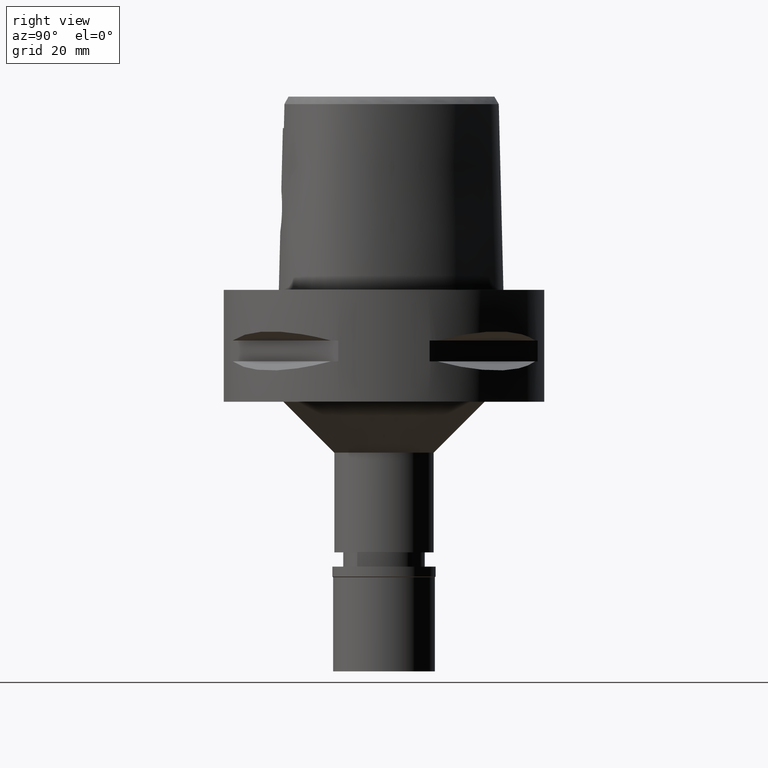
[diagram: clean part render]
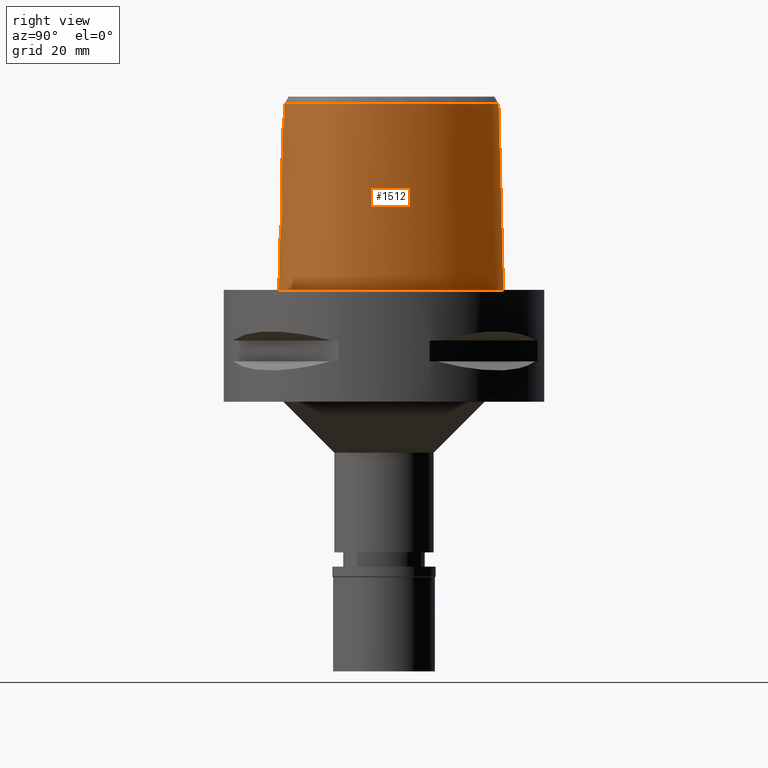
[diagram: same view with one face highlighted and labeled with its STEP entity id]
A machine part, right view. The second image highlights one B-rep face of the part: STEP entity #1512.
In plain terms, the highlighted face is a freeform B-spline surface patch.
Its self-contained STEP definition (entity closure, byte-faithful):
#9 = CARTESIAN_POINT ( 'NONE',  ( 13.93560865100999990, 15.24203790339999998, 24.59140259457000255 ) ) ;
#25 = CARTESIAN_POINT ( 'NONE',  ( 2.755157824485813478, -20.25369729349931447, 12.53110329701945957 ) ) ;
#29 = CARTESIAN_POINT ( 'NONE',  ( 0.5662264553953000323, 22.56729408688000049, 37.25232274225999873 ) ) ;
#36 = CARTESIAN_POINT ( 'NONE',  ( 0.0000000000000000000, -20.18628283968999781, 19.55000000000000071 ) ) ;
#50 = CARTESIAN_POINT ( 'NONE',  ( 4.467522181836776518, -19.48130276147466233, 36.52186680739941949 ) ) ;
#60 = CARTESIAN_POINT ( 'NONE',  ( 7.571159433700400676, 21.31457031138521074, 5.133892459372943473E-08 ) ) ;
#71 = CARTESIAN_POINT ( 'NONE',  ( 1.534443768011648057, -20.34781270669742170, 11.75193064433114998 ) ) ;
#98 = CARTESIAN_POINT ( 'NONE',  ( 3.733615223661733928, -20.12743432469062910, 13.93072684952629103 ) ) ;
#99 = CARTESIAN_POINT ( 'NONE',  ( 4.757642236485272846, 21.67478320247679591, 36.52186680739941949 ) ) ;
#112 = CARTESIAN_POINT ( 'NONE',  ( 2.503154195450497888, -19.81241979350998861, 31.80000012137775656 ) ) ;
#130 = CARTESIAN_POINT ( 'NONE',  ( 0.5990982011772000293, 23.20165468101000172, 11.93048244686999837 ) ) ;
#153 = CARTESIAN_POINT ( 'NONE',  ( 3.756125069740346767, -20.04745855932932130, 17.01462778956118171 ) ) ;
#178 = CARTESIAN_POINT ( 'NONE',  ( 3.139923909412124736, -20.08266069410734289, 18.05905178831253366 ) ) ;
#181 = VERTEX_POINT ( 'NONE', #536 ) ;
#203 = CARTESIAN_POINT ( 'NONE',  ( 2.297767253104399110, -20.12839387099746702, 18.84582622681135788 ) ) ;
#242 = CARTESIAN_POINT ( 'NONE',  ( 6.344715576791000622, -20.31619965019000063, -0.7304377008286999651 ) ) ;
#254 = CARTESIAN_POINT ( 'NONE',  ( 3.637738219117000238, -19.56971420299000286, 36.52185956443999970 ) ) ;
#256 = CARTESIAN_POINT ( 'NONE',  ( 1.557547252386422443, -20.15944608752167611, 19.23852208297625666 ) ) ;
#286 = CARTESIAN_POINT ( 'NONE',  ( 21.76083711900999873, -6.805026044168000610, 11.93048244686999837 ) ) ;
#297 = CARTESIAN_POINT ( 'NONE',  ( -1.332086229924000112E-11, -20.67499999999999716, 1.606492716632999857E-13 ) ) ;
#311 = CARTESIAN_POINT ( 'NONE',  ( 4.868968416980999692, 21.95285536443999774, 24.59140259457000255 ) ) ;
#330 = CARTESIAN_POINT ( 'NONE',  ( 19.40779768701000307, -12.64961927324999991, 11.93048244686999837 ) ) ;
#349 = CARTESIAN_POINT ( 'NONE',  ( 21.57281239314000132, -9.001246195337998302, -0.7304377008286999651 ) ) ;
#370 = CARTESIAN_POINT ( 'NONE',  ( 22.07548129164000272, -6.850245535560999244, -0.7304377008286999651 ) ) ;
#387 = CARTESIAN_POINT ( 'NONE',  ( 3.597776364496946933, -20.14975664637258745, 13.63784956325325304 ) ) ;
#398 = CARTESIAN_POINT ( 'NONE',  ( 20.93173252094357295, -10.60431640572513423, 5.133892459372943473E-08 ) ) ;
#401 = CARTESIAN_POINT ( 'NONE',  ( 6.819050439105700543E-09, -19.98212988583619065, 27.71666688228206610 ) ) ;
#405 = B_SPLINE_CURVE_WITH_KNOTS ( 'NONE', 3,
 ( #913, #112, #3093, #938 ),
 .UNSPECIFIED., .F., .F.,
 ( 4, 4 ),
 ( 0.0000000000000000000, 1.000000000000000000 ),
 .UNSPECIFIED. ) ;
#409 = EDGE_CURVE ( 'NONE', #2981, #2292, #1281, .T. ) ;
#411 = CARTESIAN_POINT ( 'NONE',  ( -1.661174828071999997E-12, -20.38876923348000147, 11.44999999999999929 ) ) ;
#424 = CARTESIAN_POINT ( 'NONE',  ( 22.05732874194318427, -6.847636718566505465, 5.133892459372943473E-08 ) ) ;
#441 = CARTESIAN_POINT ( 'NONE',  ( 21.07429999882542404, -0.4408303635841513968, 36.52186680739941949 ) ) ;
#444 = CARTESIAN_POINT ( 'NONE',  ( -0.4685451964167999805, 23.16976073745999898, 11.93048244686999837 ) ) ;
#458 = EDGE_LOOP ( 'NONE', ( #3742, #1393, #1088, #4203, #2343, #995, #4684, #4397 ) ) ;
#461 = CARTESIAN_POINT ( 'NONE',  ( 3.724651210598531215, -20.12894159338725686, 13.90953409661135609 ) ) ;
#464 = CARTESIAN_POINT ( 'NONE',  ( 10.91891095221553343, -18.03046396093033366, 36.52186680739941949 ) ) ;
#514 = CARTESIAN_POINT ( 'NONE',  ( 2.894554313917170330, -20.09690386000385587, 18.33268078382266708 ) ) ;
#536 = CARTESIAN_POINT ( 'NONE',  ( -1.479182330943000172E-11, 22.56201468012000078, 36.52186680743999858 ) ) ;
#543 = CARTESIAN_POINT ( 'NONE',  ( 0.4959045370077683756, -20.18628283969000847, 19.55000000000000426 ) ) ;
#566 = CARTESIAN_POINT ( 'NONE',  ( 4.049385880667935034, -20.05442340995131545, 15.42296868718058533 ) ) ;
#599 = CARTESIAN_POINT ( 'NONE',  ( -0.4439347110420999720, -19.74161829701999693, 37.25232274225999873 ) ) ;
#613 = CARTESIAN_POINT ( 'NONE',  ( 1.850273374710851959, -20.14815026262960984, 19.10390060252128208 ) ) ;
#623 = CARTESIAN_POINT ( 'NONE',  ( -0.6779734136081999596, -20.37023483331000051, 11.93048244686999837 ) ) ;
#649 = CARTESIAN_POINT ( 'NONE',  ( 4.987110666642000645, 22.24795280366999961, 11.93048244686999837 ) ) ;
#654 = EDGE_CURVE ( 'NONE', #1007, #2981, #405, .T. ) ;
#656 = CARTESIAN_POINT ( 'NONE',  ( 5.098437016805039690, 22.52602538943070343, 5.133892459372943473E-08 ) ) ;
#669 = CARTESIAN_POINT ( 'NONE',  ( 14.42198652042999818, 15.65278600286999833, -0.7304377008286999651 ) ) ;
#693 = CARTESIAN_POINT ( 'NONE',  ( 18.89485276765000066, -12.27684372565000004, 37.25232274225999873 ) ) ;
#713 = CARTESIAN_POINT ( 'NONE',  ( 17.80867307855000092, 10.28184208416000089, 11.93048244686999837 ) ) ;
#729 = CARTESIAN_POINT ( 'NONE',  ( 18.12052901851000186, -13.74516025311999989, 24.59140259457000255 ) ) ;
#747 = CARTESIAN_POINT ( 'NONE',  ( 2.830716186895712916, -20.24585369672335489, 12.60349817410715367 ) ) ;
#756 = CARTESIAN_POINT ( 'NONE',  ( 20.34961798445548453, -11.74885742122440035, 5.133892459372943473E-08 ) ) ;
#762 = EDGE_CURVE ( 'NONE', #3873, #2292, #4192, .T. ) ;
#764 = B_SPLINE_CURVE_WITH_KNOTS ( 'NONE', 3,
 ( #297, #2124, #3260, #4112, #2986, #1123, #3622, #2624, #756, #398, #1149, #424, #2883, #2521, #4012, #782, #3769, #3410, #60, #656, #1778, #4180, #4154 ),
 .UNSPECIFIED., .F., .F.,
 ( 4, 1, 1, 1, 1, 1, 1, 1, 1, 1, 1, 1, 1, 1, 1, 1, 1, 1, 1, 1, 4 ),
 ( 0.0000000000000000000, 0.08333333333346000515, 0.1666666666668000230, 0.2083333333334000115, 0.2500000000000000000, 0.2916666666666999919, 0.3125000000000000000, 0.3333333333333000081, 0.3541666666666999919, 0.3750000000000000000, 0.4166666666666999919, 0.4583333333332000326, 0.4999999999998999689, 0.5833333333332000326, 0.6666666666664999852, 0.7499999999998000488, 0.8333333333329999704, 0.8749999999997000177, 0.9166666666664000651, 0.9583333333329999704, 1.000000000000000000 ),
 .UNSPECIFIED. ) ;
#773 = CARTESIAN_POINT ( 'NONE',  ( 7.300578979385020872, -19.07170738130598409, 36.52186680739941949 ) ) ;
#782 = CARTESIAN_POINT ( 'NONE',  ( 18.06826688415234727, 10.43171874935659282, 5.133892459372943473E-08 ) ) ;
#819 = CARTESIAN_POINT ( 'NONE',  ( 0.8967255837377424710, -20.37500966569019312, 11.54832647593769224 ) ) ;
#822 = CARTESIAN_POINT ( 'NONE',  ( 19.88562079789032211, 4.345879946637223767, 36.52186680739941949 ) ) ;
#824 = CARTESIAN_POINT ( 'NONE',  ( -0.4812391254321000122, 23.48607176340000180, -0.7304377008286999651 ) ) ;
#845 = CARTESIAN_POINT ( 'NONE',  ( 3.845388264044706350, -20.10868287104974428, 14.19733377287531617 ) ) ;
#848 = CARTESIAN_POINT ( 'NONE',  ( 20.67704204634065590, -8.734985285292969692, 36.52186680739941949 ) ) ;
#872 = CARTESIAN_POINT ( 'NONE',  ( 1.559206937744130439, -20.15938941025298803, 19.23783019057958654 ) ) ;
#905 = DIRECTION ( 'NONE',  ( 2.208678029385959910E-12, 0.02499051290944955331, -0.9996876883629820520 ) ) ;
#913 = CARTESIAN_POINT ( 'NONE',  ( 3.736696120837999402, -19.67778323291999953, 31.80000004972999861 ) ) ;
#924 = CARTESIAN_POINT ( 'NONE',  ( 2.885120786806726567, -20.09744565367675406, 18.34229159665161646 ) ) ;
#938 = CARTESIAN_POINT ( 'NONE',  ( 2.041042029990999821E-08, -19.88004246002000031, 31.80000004972000127 ) ) ;
#952 = CARTESIAN_POINT ( 'NONE',  ( 1.579844284317143410, -20.15867419586176368, 19.22916814255881235 ) ) ;
#995 = ORIENTED_EDGE ( 'NONE', *, *, #762, .F. ) ;
#1007 = VERTEX_POINT ( 'NONE', #4768 ) ;
#1018 = EDGE_CURVE ( 'NONE', #1007, #2618, #1973, .T. ) ;
#1038 = CARTESIAN_POINT ( 'NONE',  ( 21.62788400384000198, -4.104079498458999886, 24.59140259457000255 ) ) ;
#1056 = CARTESIAN_POINT ( 'NONE',  ( 2.373090301473000263, 22.37624339415000208, 37.25232274225999873 ) ) ;
#1079 = CARTESIAN_POINT ( 'NONE',  ( 0.6155340740681999323, 23.51883497808000101, -0.7304377008286999651 ) ) ;
#1088 = ORIENTED_EDGE ( 'NONE', *, *, #1018, .F. ) ;
#1101 = CARTESIAN_POINT ( 'NONE',  ( 21.31039822279999996, -4.105938497665999165, 37.25232274225999873 ) ) ;
#1117 = CARTESIAN_POINT ( 'NONE',  ( 21.36961501140999786, -0.3886497901786999942, 24.59140259457000255 ) ) ;
#1123 = CARTESIAN_POINT ( 'NONE',  ( 16.95889172514020871, -15.67838867086465626, 5.133892459372943473E-08 ) ) ;
#1136 = CARTESIAN_POINT ( 'NONE',  ( 1.428720464823030500, -20.35332222192774054, 11.71010416620863026 ) ) ;
#1142 = CARTESIAN_POINT ( 'NONE',  ( -0.6834384068752999974, 22.83968691451999788, 24.59140259457000255 ) ) ;
#1149 = CARTESIAN_POINT ( 'NONE',  ( 21.55524825886109141, -8.996025390257862853, 5.133892459372943473E-08 ) ) ;
#1165 = CARTESIAN_POINT ( 'NONE',  ( -0.4431573383862000282, 22.53713868559000133, 37.25232274225999873 ) ) ;
#1185 = CARTESIAN_POINT ( 'NONE',  ( 3.146977188789482405, -20.21214664843403952, 12.91782310762716257 ) ) ;
#1213 = CARTESIAN_POINT ( 'NONE',  ( 3.660536077359736407, -20.13964887464832287, 13.76643420059980727 ) ) ;
#1238 = CARTESIAN_POINT ( 'NONE',  ( 4.027814664727155325, -20.04259081693773936, 15.99899074095937124 ) ) ;
#1263 = CARTESIAN_POINT ( 'NONE',  ( 4.044176424623041832, -20.05897250992954639, 15.26767728055139095 ) ) ;
#1281 = B_SPLINE_CURVE_WITH_KNOTS ( 'NONE', 3,
 ( #1880, #401, #3381, #36 ),
 .UNSPECIFIED., .F., .F.,
 ( 4, 4 ),
 ( 0.0000000000000000000, 1.000000000000000000 ),
 .UNSPECIFIED. ) ;
#1290 = CARTESIAN_POINT ( 'NONE',  ( 3.922298745473326687, -20.04161990539551041, 16.51790891224822033 ) ) ;
#1316 = CARTESIAN_POINT ( 'NONE',  ( 1.630204615536525070, -20.15684766332469025, 19.20746487088982235 ) ) ;
#1350 = CARTESIAN_POINT ( 'NONE',  ( 10.91263706017000068, -18.01320795703000144, 37.25232274225999873 ) ) ;
#1393 = ORIENTED_EDGE ( 'NONE', *, *, #2090, .T. ) ;
#1403 = CARTESIAN_POINT ( 'NONE',  ( 21.13154877375000140, -6.714587061383999966, 37.25232274225999873 ) ) ;
#1412 = CARTESIAN_POINT ( 'NONE',  ( 2.041042029990999821E-08, -19.88004246002000031, 31.80000004972000127 ) ) ;
#1425 = CARTESIAN_POINT ( 'NONE',  ( 7.420053135135999511, 21.05635744838999912, 11.93048244686999837 ) ) ;
#1445 = CARTESIAN_POINT ( 'NONE',  ( 19.81622823152000024, -11.44090470262000103, 24.59140259457000255 ) ) ;
#1464 = CARTESIAN_POINT ( 'NONE',  ( 18.08416038364000045, 10.44089487240000125, -0.7304377008286999651 ) ) ;
#1486 = CARTESIAN_POINT ( 'NONE',  ( 16.77374382954999987, -15.44292473024000145, 11.93048244686999837 ) ) ;
#1512 = ADVANCED_FACE ( 'NONE', ( #1643 ), #3835, .T. ) ;
#1528 = CARTESIAN_POINT ( 'NONE',  ( 3.341890038405587848, -20.18695819804734626, 13.19695928479302438 ) ) ;
#1552 = CARTESIAN_POINT ( 'NONE',  ( 2.279301188469461170, -20.29725948041572892, 12.14965229529804347 ) ) ;
#1579 = CARTESIAN_POINT ( 'NONE',  ( 10.15538781007090918, 18.47129526703172075, 36.52186680739941949 ) ) ;
#1607 = CARTESIAN_POINT ( 'NONE',  ( 19.55745538000878625, -11.29150212657346231, 36.52186680739941949 ) ) ;
#1631 = CARTESIAN_POINT ( 'NONE',  ( 2.905045300906303307, -20.09630101413480574, 18.32194731706497137 ) ) ;
#1634 = CARTESIAN_POINT ( 'NONE',  ( 0.0000000000000000000, -20.18628283968999781, 19.55000000000000071 ) ) ;
#1643 = FACE_OUTER_BOUND ( 'NONE', #458, .T. ) ;
#1658 = CARTESIAN_POINT ( 'NONE',  ( 3.015907650573613097, -20.08989590398387293, 18.20338242658490913 ) ) ;
#1681 = CARTESIAN_POINT ( 'NONE',  ( 1.952175288128869202, -20.14384150259925477, 19.05097993753602736 ) ) ;
#1703 = CARTESIAN_POINT ( 'NONE',  ( 3.637738219117000238, -19.56971420299000286, 36.52185956443999970 ) ) ;
#1706 = CARTESIAN_POINT ( 'NONE',  ( 3.752145809978406632, -20.04764366482259774, 17.02444873848531159 ) ) ;
#1719 = CARTESIAN_POINT ( 'NONE',  ( 6.288476578748999124, -20.00290571355000324, 11.93048244686999837 ) ) ;
#1725 = EDGE_CURVE ( 'NONE', #181, #4249, #4228, .T. ) ;
#1744 = CARTESIAN_POINT ( 'NONE',  ( 1.886855603297000084, -20.71358919592000092, -0.7304377008286999651 ) ) ;
#1769 = CARTESIAN_POINT ( 'NONE',  ( 18.35112154237999960, -13.96357035949999847, 11.93048244686999837 ) ) ;
#1777 = VERTEX_POINT ( 'NONE', #3947 ) ;
#1778 = CARTESIAN_POINT ( 'NONE',  ( 2.564517726692166377, 23.29328124873773476, 5.133892459372943473E-08 ) ) ;
#1788 = EDGE_CURVE ( 'NONE', #3873, #1777, #4705, .T. ) ;
#1791 = CARTESIAN_POINT ( 'NONE',  ( 4.750826167319999627, 21.65775792522000032, 37.25232274225999873 ) ) ;
#1811 = CARTESIAN_POINT ( 'NONE',  ( 20.76670354964000254, 4.663413654174999756, -0.7304377008286999651 ) ) ;
#1830 = CARTESIAN_POINT ( 'NONE',  ( 19.66427014668999718, -12.83600704704999984, -0.7304377008286999651 ) ) ;
#1851 = CARTESIAN_POINT ( 'NONE',  ( 21.05621900886999853, -0.4440251772015000320, 37.25232274225999873 ) ) ;
#1868 = CARTESIAN_POINT ( 'NONE',  ( 1.731224800183161827, -20.33718087933164398, 11.83285799086272050 ) ) ;
#1880 = CARTESIAN_POINT ( 'NONE',  ( 2.041042029990999821E-08, -19.88004246002000031, 31.80000004972000127 ) ) ;
#1888 = CARTESIAN_POINT ( 'NONE',  ( 1.943634176605546271, -20.32333441056056955, 11.93700115237588300 ) ) ;
#1915 = CARTESIAN_POINT ( 'NONE',  ( 0.5088336983802315139, -20.38532934153254317, 11.47346924504332044 ) ) ;
#1940 = CARTESIAN_POINT ( 'NONE',  ( 3.732532274772730752, -20.12761616597519421, 13.92815111051627674 ) ) ;
#1973 = B_SPLINE_CURVE_WITH_KNOTS ( 'NONE', 3,
 ( #3597, #3965, #2860, #254 ),
 .UNSPECIFIED., .F., .F.,
 ( 4, 4 ),
 ( 0.0000000000000000000, 1.000000000000000000 ),
 .UNSPECIFIED. ) ;
#1999 = CARTESIAN_POINT ( 'NONE',  ( 18.90964962507554148, -12.28759713487851357, 36.52186680739941949 ) ) ;
#2003 = VECTOR ( 'NONE', #2743, 1000.000000000000114 ) ;
#2011 = CARTESIAN_POINT ( 'NONE',  ( 16.97022731142999774, -15.69280483157000106, -0.7304377008286999651 ) ) ;
#2026 = CARTESIAN_POINT ( 'NONE',  ( 4.018824241939421782, -20.06919542757557551, 14.98245414913244566 ) ) ;
#2031 = CARTESIAN_POINT ( 'NONE',  ( -1.479182330943000172E-11, 22.56201468012000078, 36.52186680743999858 ) ) ;
#2038 = CARTESIAN_POINT ( 'NONE',  ( 1.836480378976999894, -19.76356513466000209, 37.25232274225999873 ) ) ;
#2049 = CARTESIAN_POINT ( 'NONE',  ( 3.355528582522661729, -20.06993180122972120, 17.77165886435037123 ) ) ;
#2089 = CARTESIAN_POINT ( 'NONE',  ( 1.870063861857000020, -20.39691450883999835, 11.93048244686999837 ) ) ;
#2090 = EDGE_CURVE ( 'NONE', #181, #2618, #4185, .T. ) ;
#2114 = CARTESIAN_POINT ( 'NONE',  ( -0.4561077449814999740, -20.69106755673000109, -0.7304377008286999651 ) ) ;
#2124 = CARTESIAN_POINT ( 'NONE',  ( 2.113823672989667557, -20.67499999870904759, 5.133892459372943473E-08 ) ) ;
#2136 = CARTESIAN_POINT ( 'NONE',  ( 10.34823237111999994, 18.70095498303999904, 24.59140259457000255 ) ) ;
#2160 = CARTESIAN_POINT ( 'NONE',  ( 13.69241971630000165, 15.03666385365999858, 37.25232274225999873 ) ) ;
#2185 = CARTESIAN_POINT ( 'NONE',  ( 20.65879048393000161, -10.48283619503000175, 11.93048244686999837 ) ) ;
#2201 = CARTESIAN_POINT ( 'NONE',  ( 16.38077686580000147, -14.94316452758999958, 37.25232274225999873 ) ) ;
#2219 = CARTESIAN_POINT ( 'NONE',  ( 20.96392244760999901, -8.820258298614000125, 24.59140259457000255 ) ) ;
#2239 = CARTESIAN_POINT ( 'NONE',  ( 2.848656072130824501, -20.24395422488612439, 12.62116621079441359 ) ) ;
#2266 = CARTESIAN_POINT ( 'NONE',  ( 20.09619608768469234, -10.23243839429777147, 36.52186680739941949 ) ) ;
#2292 = VERTEX_POINT ( 'NONE', #1634 ) ;
#2315 = CARTESIAN_POINT ( 'NONE',  ( 2.393937941201304209, -20.28768363253607987, 12.22995430976125242 ) ) ;
#2324 = CARTESIAN_POINT ( 'NONE',  ( -0.4558512674015000044, 22.85344971153000060, 24.59140259457000255 ) ) ;
#2343 = ORIENTED_EDGE ( 'NONE', *, *, #409, .T. ) ;
#2347 = CARTESIAN_POINT ( 'NONE',  ( 3.702377620560987292, -20.13268965922237186, 13.85827189118988478 ) ) ;
#2351 = CARTESIAN_POINT ( 'NONE',  ( 17.27359236349250082, 9.972912859139690056, 36.52186680739941949 ) ) ;
#2372 = CARTESIAN_POINT ( 'NONE',  ( 0.0000000000000000000, -20.18628283968999781, 19.55000000000000071 ) ) ;
#2424 = CARTESIAN_POINT ( 'NONE',  ( 4.000259687173843837, -20.07463044974041111, 14.85344928445106305 ) ) ;
#2461 = CARTESIAN_POINT ( 'NONE',  ( -0.6657939535483999860, -19.73734217107000433, 37.25232274225999873 ) ) ;
#2474 = CARTESIAN_POINT ( 'NONE',  ( 3.671197993485947553, -20.05144012297622069, 17.22277455147139236 ) ) ;
#2511 = CARTESIAN_POINT ( 'NONE',  ( 14.21104795389999964, -16.40237698131000244, 37.25232274225999873 ) ) ;
#2521 = CARTESIAN_POINT ( 'NONE',  ( 21.97832647659170746, -0.2810937502245363095, 5.133892459372943473E-08 ) ) ;
#2534 = CARTESIAN_POINT ( 'NONE',  ( 22.26285556591999892, -4.100361500045999641, -0.7304377008286999651 ) ) ;
#2556 = CARTESIAN_POINT ( 'NONE',  ( 20.36913770872000029, -10.35391841985999939, 24.59140259457000255 ) ) ;
#2575 = CARTESIAN_POINT ( 'NONE',  ( 21.68301101393999630, -0.3332744031559999875, 11.93048244686999837 ) ) ;
#2595 = CARTESIAN_POINT ( 'NONE',  ( 19.54161172449000006, -11.28235478775999923, 37.25232274225999873 ) ) ;
#2610 = CARTESIAN_POINT ( 'NONE',  ( 1.219914642302582175, -20.36297004387411036, 11.63750816716896175 ) ) ;
#2618 = VERTEX_POINT ( 'NONE', #1703 ) ;
#2624 = CARTESIAN_POINT ( 'NONE',  ( 19.64947365759156384, -12.82525390549806232, 5.133892459372943473E-08 ) ) ;
#2636 = CARTESIAN_POINT ( 'NONE',  ( 2.625054034517508406, -20.26654247665619835, 12.41494688777230948 ) ) ;
#2639 = CARTESIAN_POINT ( 'NONE',  ( 13.70645019738503656, 15.04851265230566248, 36.52186680739941949 ) ) ;
#2683 = CARTESIAN_POINT ( 'NONE',  ( 3.544951686306345273, -20.15795908853306528, 13.53703058278339810 ) ) ;
#2687 = CARTESIAN_POINT ( 'NONE',  ( 21.14970177531591133, -6.717195943319384632, 36.52186680739941949 ) ) ;
#2712 = CARTESIAN_POINT ( 'NONE',  ( 3.734333138700353327, -20.12731381197601266, 13.93243600820868622 ) ) ;
#2738 = CARTESIAN_POINT ( 'NONE',  ( 3.275683108860404591, -20.07467505300568433, 17.88618377728549547 ) ) ;
#2741 = CARTESIAN_POINT ( 'NONE',  ( 16.39211273426509052, -14.95758104715498682, 36.52186680739941949 ) ) ;
#2743 = DIRECTION ( 'NONE',  ( -1.017995285158978104E-12, -0.02499051295360945474, -0.9996876883618780463 ) ) ;
#2762 = CARTESIAN_POINT ( 'NONE',  ( 2.887537322029587461, -20.09730689105645141, 18.33983332488737616 ) ) ;
#2774 = CARTESIAN_POINT ( 'NONE',  ( 6.175998582662999503, -19.37631784027000137, 37.25232274225999873 ) ) ;
#2789 = CARTESIAN_POINT ( 'NONE',  ( 3.567199012627793486, -20.05744357277728085, 17.43587588980800263 ) ) ;
#2813 = CARTESIAN_POINT ( 'NONE',  ( 1.561709138419493437, -20.15930377878562751, 19.23678609591801703 ) ) ;
#2848 = CARTESIAN_POINT ( 'NONE',  ( 14.68244497146000072, -17.23001773076000021, -0.7304377008286999651 ) ) ;
#2860 = CARTESIAN_POINT ( 'NONE',  ( 3.671249151389730514, -19.60525176641679579, 34.94790639287000289 ) ) ;
#2877 = CARTESIAN_POINT ( 'NONE',  ( -0.4520500670016999734, -20.37458447015999852, 11.93048244686999837 ) ) ;
#2883 = CARTESIAN_POINT ( 'NONE',  ( 22.24453907726493895, -4.100468750007731700, 5.133892459372943473E-08 ) ) ;
#2899 = CARTESIAN_POINT ( 'NONE',  ( 17.25769846836999832, 9.963736507676001608, 37.25232274225999873 ) ) ;
#2923 = CARTESIAN_POINT ( 'NONE',  ( 21.94536978488000045, -4.102220499251999719, 11.93048244686999837 ) ) ;
#2942 = CARTESIAN_POINT ( 'NONE',  ( 21.44619294638000184, -6.759806552775999400, 24.59140259457000255 ) ) ;
#2961 = CARTESIAN_POINT ( 'NONE',  ( 10.14358068742999919, 18.45723409560000050, 37.25232274225999873 ) ) ;
#2980 = CARTESIAN_POINT ( 'NONE',  ( 20.65947747483999919, -8.729764350252001037, 37.25232274225999873 ) ) ;
#2981 = VERTEX_POINT ( 'NONE', #1412 ) ;
#2986 = CARTESIAN_POINT ( 'NONE',  ( 14.67337964356189239, -17.21410156138248482, 5.133892459372943473E-08 ) ) ;
#2996 = CARTESIAN_POINT ( 'NONE',  ( 1.524484857645501013, -20.34834714382795795, 11.74786463903648936 ) ) ;
#3001 = CARTESIAN_POINT ( 'NONE',  ( -0.6642815279115000804, 22.52377637804000088, 37.25232274225999873 ) ) ;
#3017 = EDGE_CURVE ( 'NONE', #1777, #4249, #764, .T. ) ;
#3023 = CARTESIAN_POINT ( 'NONE',  ( 3.678695921311957218, -20.13664559932629317, 13.80554397151324686 ) ) ;
#3051 = CARTESIAN_POINT ( 'NONE',  ( 2.841481942212280565, -20.24471504979817027, 12.61408493277415843 ) ) ;
#3083 = CARTESIAN_POINT ( 'NONE',  ( -0.7217521648029999737, 23.47150798749000344, -0.7304377008286999651 ) ) ;
#3093 = CARTESIAN_POINT ( 'NONE',  ( 1.251533272179826684, -19.88005341395612646, 31.80000012137775656 ) ) ;
#3135 = CARTESIAN_POINT ( 'NONE',  ( 3.771924749574916635, -20.04673734607102276, 16.97498912668001836 ) ) ;
#3150 = CARTESIAN_POINT ( 'NONE',  ( -0.6840631436381999775, -20.68668116444000304, -0.7304377008286999651 ) ) ;
#3161 = CARTESIAN_POINT ( 'NONE',  ( 3.092007656462586240, -20.08546770171419382, 18.11684746536802137 ) ) ;
#3188 = CARTESIAN_POINT ( 'NONE',  ( 1.721395864980272750, -20.15335272691978830, 19.16627522896646596 ) ) ;
#3215 = CARTESIAN_POINT ( 'NONE',  ( 4.049847950762889504, -20.05362044738918925, 15.45260355635227256 ) ) ;
#3226 = CARTESIAN_POINT ( 'NONE',  ( 11.23887130271000068, -18.91049776063999843, -0.7304377008286999651 ) ) ;
#3260 = CARTESIAN_POINT ( 'NONE',  ( 6.341471018983529717, -20.29812499872887699, 5.133892459372944135E-08 ) ) ;
#3277 = CARTESIAN_POINT ( 'NONE',  ( 21.26836742036999794, -8.910752246975999213, 11.93048244686999837 ) ) ;
#3297 = CARTESIAN_POINT ( 'NONE',  ( 2.568271205887000086, 23.31126238443000176, -0.7304377008286999651 ) ) ;
#3315 = CARTESIAN_POINT ( 'NONE',  ( 20.16779733373000028, 4.447573642750000111, 24.59140259457000255 ) ) ;
#3334 = CARTESIAN_POINT ( 'NONE',  ( 20.94844325915000027, -10.61175397020000055, -0.7304377008286999651 ) ) ;
#3354 = CARTESIAN_POINT ( 'NONE',  ( 20.36546124559000148, -11.75800453233999932, -0.7304377008286999651 ) ) ;
#3370 = CARTESIAN_POINT ( 'NONE',  ( 3.713327282313640954, -20.13084893239019380, 13.88315320755013538 ) ) ;
#3381 = CARTESIAN_POINT ( 'NONE',  ( 6.839024713208919302E-09, -20.08420636276385807, 23.63333344114127144 ) ) ;
#3392 = CARTESIAN_POINT ( 'NONE',  ( 2.805565869527288481, -20.24849240644875792, 12.57904116342908729 ) ) ;
#3410 = CARTESIAN_POINT ( 'NONE',  ( 10.74572890975553108, 19.17433593651194101, 5.133892459372943473E-08 ) ) ;
#3423 = CARTESIAN_POINT ( 'NONE',  ( 1.026284908630525017, -20.37070980075587556, 11.57987514751377844 ) ) ;
#3449 = CARTESIAN_POINT ( 'NONE',  ( 2.567126399383125701, -20.27199355396954772, 12.36666767318989102 ) ) ;
#3450 = CARTESIAN_POINT ( 'NONE',  ( -1.479182330943000172E-11, 22.56201468012000078, 36.52186680743999858 ) ) ;
#3528 = CARTESIAN_POINT ( 'NONE',  ( 3.762477037507979460, -20.04716674134702714, 16.99877931086203731 ) ) ;
#3541 = CARTESIAN_POINT ( 'NONE',  ( 6.232237580706000202, -19.68961177691000231, 24.59140259457000255 ) ) ;
#3551 = CARTESIAN_POINT ( 'NONE',  ( 2.583846531365329824, -20.11473364791531893, 18.64711139486658453 ) ) ;
#3576 = CARTESIAN_POINT ( 'NONE',  ( 4.037288619571368642, -20.06218911274252648, 15.17308089514829206 ) ) ;
#3588 = CARTESIAN_POINT ( 'NONE',  ( 1.853272120416999957, -20.08023982175000199, 24.59140259457000255 ) ) ;
#3597 = CARTESIAN_POINT ( 'NONE',  ( 3.736696120837999402, -19.67778323291999953, 31.80000004972999861 ) ) ;
#3600 = CARTESIAN_POINT ( 'NONE',  ( 4.050948068489452325, -20.04627564452895427, 15.73931143977235259 ) ) ;
#3612 = CARTESIAN_POINT ( 'NONE',  ( 14.52531263227000125, -16.95413748094000184, 11.93048244686999837 ) ) ;
#3622 = CARTESIAN_POINT ( 'NONE',  ( 18.56841065047631645, -14.16937988192455045, 5.133892459372943473E-08 ) ) ;
#3634 = CARTESIAN_POINT ( 'NONE',  ( 7.099337724559000584, 20.50831381844000134, 37.25232274225999873 ) ) ;
#3658 = CARTESIAN_POINT ( 'NONE',  ( 10.55288405480999891, 18.94467587048000112, 11.93048244686999837 ) ) ;
#3679 = CARTESIAN_POINT ( 'NONE',  ( 21.99640701646999830, -0.2778990161332999809, -0.7304377008286999651 ) ) ;
#3697 = CARTESIAN_POINT ( 'NONE',  ( 17.53318577346000140, 10.12278929592000054, 24.59140259457000255 ) ) ;
#3715 = CARTESIAN_POINT ( 'NONE',  ( 18.58171406625000088, -14.18198046587000150, -0.7304377008286999651 ) ) ;
#3732 = CARTESIAN_POINT ( 'NONE',  ( 1.508548257805976789, -20.34919367973690285, 11.74142899467713619 ) ) ;
#3742 = ORIENTED_EDGE ( 'NONE', *, *, #1725, .F. ) ;
#3762 = CARTESIAN_POINT ( 'NONE',  ( 0.5826623282862999353, 22.88447438393999889, 24.59140259457000255 ) ) ;
#3769 = CARTESIAN_POINT ( 'NONE',  ( 14.40795638859523642, 15.64093749916761666, 5.133892459372943473E-08 ) ) ;
#3801 = CARTESIAN_POINT ( 'NONE',  ( 6.589842200291999297E-11, 23.47499999998000320, 1.576886769308999875E-13 ) ) ;
#3811 = CARTESIAN_POINT ( 'NONE',  ( 2.711812544769597100, -20.25803428399940387, 12.49166772623420663 ) ) ;
#3813 = CARTESIAN_POINT ( 'NONE',  ( 0.7901461619530777414, 22.56201467849585640, 36.52186680739941949 ) ) ;
#3835 = B_SPLINE_SURFACE_WITH_KNOTS ( 'NONE', 3, 3, ( 
 ( #3150, #623, #3904, #2461 ),
 ( #2114, #2877, #3954, #599 ),
 ( #1744, #2089, #3588, #2038 ),
 ( #242, #1719, #3541, #2774 ),
 ( #3226, #4711, #4261, #1350 ),
 ( #2848, #3612, #4368, #2511 ),
 ( #2011, #1486, #4080, #2201 ),
 ( #3715, #1769, #729, #4047 ),
 ( #1830, #330, #4065, #693 ),
 ( #3354, #4393, #1445, #2595 ),
 ( #3334, #2185, #2556, #4760 ),
 ( #349, #3277, #2219, #2980 ),
 ( #370, #286, #2942, #1403 ),
 ( #2534, #2923, #1038, #1101 ),
 ( #3679, #2575, #1117, #1851 ),
 ( #1811, #4024, #3315, #4442 ),
 ( #1464, #713, #3697, #2899 ),
 ( #669, #4820, #9, #2160 ),
 ( #4800, #3658, #2136, #2961 ),
 ( #4479, #1425, #4461, #3634 ),
 ( #4003, #649, #311, #1791 ),
 ( #3297, #4780, #4417, #1056 ),
 ( #1079, #130, #3762, #29 ),
 ( #824, #444, #2324, #1165 ),
 ( #3083, #4148, #1142, #3001 ) ),
 .UNSPECIFIED., .F., .F., .F.,
 ( 4, 1, 1, 1, 1, 1, 1, 1, 1, 1, 1, 1, 1, 1, 1, 1, 1, 1, 1, 1, 1, 1, 4 ),
 ( 4, 4 ),
 ( -0.008985960173607998938, 0.0000000000000000000, 0.08333333333346000515, 0.1666666666668000230, 0.2083333333334000115, 0.2500000000000000000, 0.2916666666666999919, 0.3125000000000000000, 0.3333333333333000081, 0.3541666666666999919, 0.3750000000000000000, 0.4166666666666999919, 0.4583333333332000326, 0.4999999999998999689, 0.5833333333332000326, 0.6666666666664999852, 0.7499999999998000488, 0.8333333333329999704, 0.8749999999997000177, 0.9166666666664000651, 0.9583333333329999704, 1.000000000000000000, 1.011710456763000199 ),
 ( 6.440578730059999579E-10, 0.9999999671531000223 ),
 .UNSPECIFIED. ) ;
#3841 = CARTESIAN_POINT ( 'NONE',  ( 3.923914256813787915, -20.09322795306330534, 14.46278330345411156 ) ) ;
#3873 = VERTEX_POINT ( 'NONE', #4319 ) ;
#3904 = CARTESIAN_POINT ( 'NONE',  ( -0.6718836835783000838, -20.05378850219000242, 24.59140259457000255 ) ) ;
#3917 = CARTESIAN_POINT ( 'NONE',  ( 3.865208542713380435, -20.04312211379557240, 16.71127182000140721 ) ) ;
#3942 = CARTESIAN_POINT ( 'NONE',  ( 4.047733528286863169, -20.05618573902188828, 15.36102835652595111 ) ) ;
#3947 = CARTESIAN_POINT ( 'NONE',  ( -1.332086229924000112E-11, -20.67499999999999716, 1.606492716632999857E-13 ) ) ;
#3954 = CARTESIAN_POINT ( 'NONE',  ( -0.4479923890219000282, -20.05810138358999950, 24.59140259457000255 ) ) ;
#3965 = CARTESIAN_POINT ( 'NONE',  ( 3.704239288984441103, -19.64128042389065598, 33.37395322129999897 ) ) ;
#3967 = CARTESIAN_POINT ( 'NONE',  ( 2.929283419942259048, -20.09490627874255964, 18.29687162475217832 ) ) ;
#3974 = CARTESIAN_POINT ( 'NONE',  ( -1.661174828071999997E-12, -20.38876923348000147, 11.44999999999999929 ) ) ;
#4003 = CARTESIAN_POINT ( 'NONE',  ( 5.105252916302999822, 22.54305024289000059, -0.7304377008286999651 ) ) ;
#4012 = CARTESIAN_POINT ( 'NONE',  ( 20.74942740758246984, 4.657187499561644906, 5.133892459372943473E-08 ) ) ;
#4024 = CARTESIAN_POINT ( 'NONE',  ( 20.46725044168999830, 4.555493648461999889, 11.93048244686999837 ) ) ;
#4047 = CARTESIAN_POINT ( 'NONE',  ( 17.88993649464000057, -13.52675014675000043, 37.25232274225999873 ) ) ;
#4065 = CARTESIAN_POINT ( 'NONE',  ( 19.15132522733000187, -12.46323149944999997, 24.59140259457000255 ) ) ;
#4080 = CARTESIAN_POINT ( 'NONE',  ( 16.57726034767999934, -15.19304462892000096, 24.59140259457000255 ) ) ;
#4097 = CARTESIAN_POINT ( 'NONE',  ( 1.484628933487066149, -20.35045340579187823, 11.73185819435325783 ) ) ;
#4109 = VECTOR ( 'NONE', #905, 1000.000000000000114 ) ;
#4112 = CARTESIAN_POINT ( 'NONE',  ( 11.23259756683577137, -18.89324218628103580, 5.133892459372943473E-08 ) ) ;
#4122 = CARTESIAN_POINT ( 'NONE',  ( 3.729962682332565560, -20.12804796779444061, 13.92205712555664654 ) ) ;
#4124 = CARTESIAN_POINT ( 'NONE',  ( 14.22011350746015346, -16.41829354688611176, 36.52186680739941949 ) ) ;
#4146 = CARTESIAN_POINT ( 'NONE',  ( 3.637738219117000238, -19.56971420299000286, 36.52185956443999970 ) ) ;
#4148 = CARTESIAN_POINT ( 'NONE',  ( -0.7025952858392000566, 23.15559745100999578, 11.93048244686999837 ) ) ;
#4154 = CARTESIAN_POINT ( 'NONE',  ( 6.589842200291999297E-11, 23.47499999998000320, 1.576886769308999875E-13 ) ) ;
#4166 = CARTESIAN_POINT ( 'NONE',  ( 0.2513650938392849588, -20.38876923348000858, 11.44999999999999751 ) ) ;
#4168 = CARTESIAN_POINT ( 'NONE',  ( 7.108589361577683619, 20.52412316394557124, 36.52186680739941949 ) ) ;
#4180 = CARTESIAN_POINT ( 'NONE',  ( 0.8548392422176173122, 23.47499999872449195, 5.133892459372943473E-08 ) ) ;
#4185 = B_SPLINE_CURVE_WITH_KNOTS ( 'NONE', 3,
 ( #3450, #3813, #4573, #99, #4168, #1579, #2639, #2351, #822, #441, #4199, #2687, #848, #2266, #1607, #1999, #4499, #2741, #4124, #464, #773, #50, #4146 ),
 .UNSPECIFIED., .F., .F.,
 ( 4, 1, 1, 1, 1, 1, 1, 1, 1, 1, 1, 1, 1, 1, 1, 1, 1, 1, 1, 1, 4 ),
 ( 0.0000000000000000000, 0.04382683003322353915, 0.08765366006602620663, 0.1314804900989341996, 0.1753073201318422203, 0.2629609801974476802, 0.3506146402631584724, 0.4382683003288690982, 0.5259219603945799459, 0.5697487904274878279, 0.6135756204601853225, 0.6574024504930933155, 0.6793158655094947429, 0.7012292805260014195, 0.7231426955424027359, 0.7450561105588040522, 0.7888829405917120452, 0.8327097706245147890, 0.8765366006573176438, 0.9641902607230703470, 1.000000000000000000 ),
 .UNSPECIFIED. ) ;
#4192 = B_SPLINE_CURVE_WITH_KNOTS ( 'NONE', 3,
 ( #411, #4166, #1915, #819, #3423, #2610, #4571, #1136, #4097, #3732, #2996, #71, #1868, #1888, #1552, #2315, #3449, #2636, #3811, #25, #3392, #747, #3051, #2239, #4545, #1185, #1528, #2683, #387, #1213, #3023, #2347, #3370, #461, #4122, #1940, #98, #2712, #4196, #845, #3841, #2424, #2026, #3576, #1263, #3942, #566, #3215, #3600, #1238, #4325, #1290, #3917, #4627, #4277, #3135, #3528, #153, #1706, #2474, #2789, #2049, #2738, #178, #3161, #1658, #4699, #3967, #1631, #514, #2762, #924, #3551, #203, #1681, #613, #3188, #4676, #1316, #4246, #952, #4222, #2813, #872, #256, #4651, #4301, #543, #2372 ),
 .UNSPECIFIED., .F., .F.,
 ( 4, 2, 2, 1, 1, 1, 2, 2, 2, 2, 2, 1, 1, 1, 2, 2, 2, 2, 2, 1, 1, 1, 1, 2, 2, 2, 2, 1, 2, 2, 2, 2, 1, 1, 1, 2, 2, 2, 2, 2, 1, 1, 1, 2, 2, 2, 2, 2, 1, 1, 1, 1, 2, 2, 4 ),
 ( 0.0000000000000000000, 0.06249999999997511713, 0.09374999999996271038, 0.1093749999999565764, 0.1171874999999534261, 0.1210937499999519273, 0.1230468749999511918, 0.1249999999999504563, 0.1874999999999223677, 0.2187499999999084344, 0.2343749999999013844, 0.2421874999998977207, 0.2460937499998958888, 0.2480468749998949729, 0.2490234374998944733, 0.2499999999998939737, 0.3124999999998619993, 0.3437499999998462341, 0.3593749999998380740, 0.3671874999998340772, 0.3710937499998320233, 0.3730468749998306355, 0.3740234374998295253, 0.3745117187498293032, 0.3749999999998291367, 0.4374999999998330225, 0.4687499999998350209, 0.4843749999998362421, 0.4921874999998366307, 0.4999999999998370193, 0.5624999999998429034, 0.5937499999998457900, 0.6093749999998472333, 0.6171874999998475664, 0.6210937499998481215, 0.6230468749998487876, 0.6249999999998494538, 0.6874999999998523403, 0.7187499999998537836, 0.7343749999998545608, 0.7421874999998552269, 0.7460937499998553379, 0.7480468749998553379, 0.7490234374998553379, 0.7499999999998553379, 0.8124999999998629985, 0.8437499999998668843, 0.8593749999998688827, 0.8671874999998702149, 0.8710937499998708811, 0.8730468749998712141, 0.8740234374998711031, 0.8745117187498713252, 0.8749999999998715472, 1.000000000000000000 ),
 .UNSPECIFIED. ) ;
#4196 = CARTESIAN_POINT ( 'NONE',  ( 3.734182928955681380, -20.12733899257112569, 13.93207690736385906 ) ) ;
#4199 = CARTESIAN_POINT ( 'NONE',  ( 21.32871516740507545, -4.105831245034452515, 36.52186680739941949 ) ) ;
#4203 = ORIENTED_EDGE ( 'NONE', *, *, #654, .T. ) ;
#4222 = CARTESIAN_POINT ( 'NONE',  ( 1.567636234851035537, -20.15909966307811985, 19.23430590123840744 ) ) ;
#4228 = LINE ( 'NONE', #2031, #4109 ) ;
#4246 = CARTESIAN_POINT ( 'NONE',  ( 1.605670341272144919, -20.15775431822367736, 19.21817100152555113 ) ) ;
#4249 = VERTEX_POINT ( 'NONE', #3801 ) ;
#4261 = CARTESIAN_POINT ( 'NONE',  ( 11.02138180768000097, -18.31230455823999748, 24.59140259457000255 ) ) ;
#4277 = CARTESIAN_POINT ( 'NONE',  ( 3.793408095043016015, -20.04579374564247018, 16.91936042821840758 ) ) ;
#4301 = CARTESIAN_POINT ( 'NONE',  ( 1.030807136769457788, -20.17735594286867595, 19.45770120352410615 ) ) ;
#4319 = CARTESIAN_POINT ( 'NONE',  ( -1.661174828071999997E-12, -20.38876923348000147, 11.44999999999999929 ) ) ;
#4325 = CARTESIAN_POINT ( 'NONE',  ( 3.953605944431483277, -20.04132940464439017, 16.38822616455193781 ) ) ;
#4368 = CARTESIAN_POINT ( 'NONE',  ( 14.36818029308999911, -16.67825723111999991, 24.59140259457000255 ) ) ;
#4393 = CARTESIAN_POINT ( 'NONE',  ( 20.09084473856000130, -11.59945461747999929, 11.93048244686999837 ) ) ;
#4397 = ORIENTED_EDGE ( 'NONE', *, *, #3017, .T. ) ;
#4417 = CARTESIAN_POINT ( 'NONE',  ( 2.438150602943999878, 22.68791639090999723, 24.59140259457000255 ) ) ;
#4442 = CARTESIAN_POINT ( 'NONE',  ( 19.86834422578000314, 4.339653637037000244, 37.25232274225999873 ) ) ;
#4461 = CARTESIAN_POINT ( 'NONE',  ( 7.259695429848000536, 20.78233563342000068, 24.59140259457000255 ) ) ;
#4479 = CARTESIAN_POINT ( 'NONE',  ( 7.580410840425000352, 21.33037926336000112, -0.7304377008286999651 ) ) ;
#4499 = CARTESIAN_POINT ( 'NONE',  ( 17.90324024157390426, -13.53935104436017589, 36.52186680739941949 ) ) ;
#4545 = CARTESIAN_POINT ( 'NONE',  ( 2.851276316152659085, -20.24367587454836226, 12.62375861030898605 ) ) ;
#4571 = CARTESIAN_POINT ( 'NONE',  ( 1.316550487631334976, -20.35877767556315376, 11.66890049693321885 ) ) ;
#4573 = CARTESIAN_POINT ( 'NONE',  ( 2.376843874103966581, 22.39422497744399720, 36.52186680739941949 ) ) ;
#4627 = CARTESIAN_POINT ( 'NONE',  ( 3.834132764127524684, -20.04413983231394170, 16.80766172510719869 ) ) ;
#4651 = CARTESIAN_POINT ( 'NONE',  ( 1.557951388414173799, -20.15943240784460500, 19.23835423776016995 ) ) ;
#4676 = CARTESIAN_POINT ( 'NONE',  ( 1.682408467833739429, -20.15487676905727454, 19.18421676573948176 ) ) ;
#4684 = ORIENTED_EDGE ( 'NONE', *, *, #1788, .T. ) ;
#4699 = CARTESIAN_POINT ( 'NONE',  ( 2.976801586317263215, -20.09216442783357692, 18.24660956151056013 ) ) ;
#4705 = LINE ( 'NONE', #3974, #2003 ) ;
#4711 = CARTESIAN_POINT ( 'NONE',  ( 11.13012655519999861, -18.61140115944000328, 11.93048244686999837 ) ) ;
#4760 = CARTESIAN_POINT ( 'NONE',  ( 20.07948493349999808, -10.22500064467999970, 37.25232274225999873 ) ) ;
#4768 = CARTESIAN_POINT ( 'NONE',  ( 3.736696120837999402, -19.67778323291999953, 31.80000004972999861 ) ) ;
#4780 = CARTESIAN_POINT ( 'NONE',  ( 2.503210904416000027, 22.99958938766999950, 11.93048244686999837 ) ) ;
#4800 = CARTESIAN_POINT ( 'NONE',  ( 10.75753573849000055, 19.18839675793000055, -0.7304377008286999651 ) ) ;
#4820 = CARTESIAN_POINT ( 'NONE',  ( 14.17879758571999993, 15.44741195313000048, 11.93048244686999837 ) ) ;